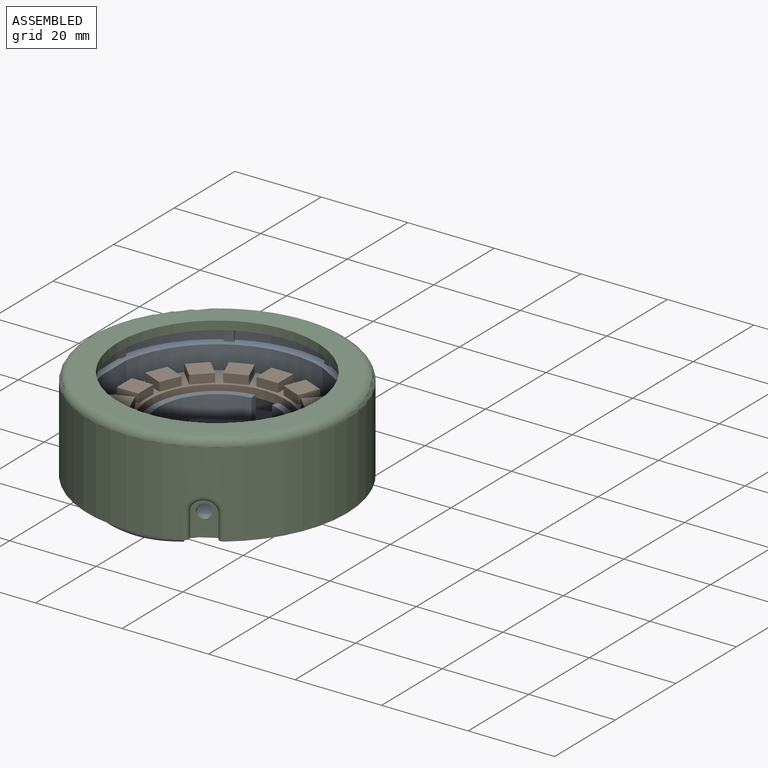
[diagram: assembled view]
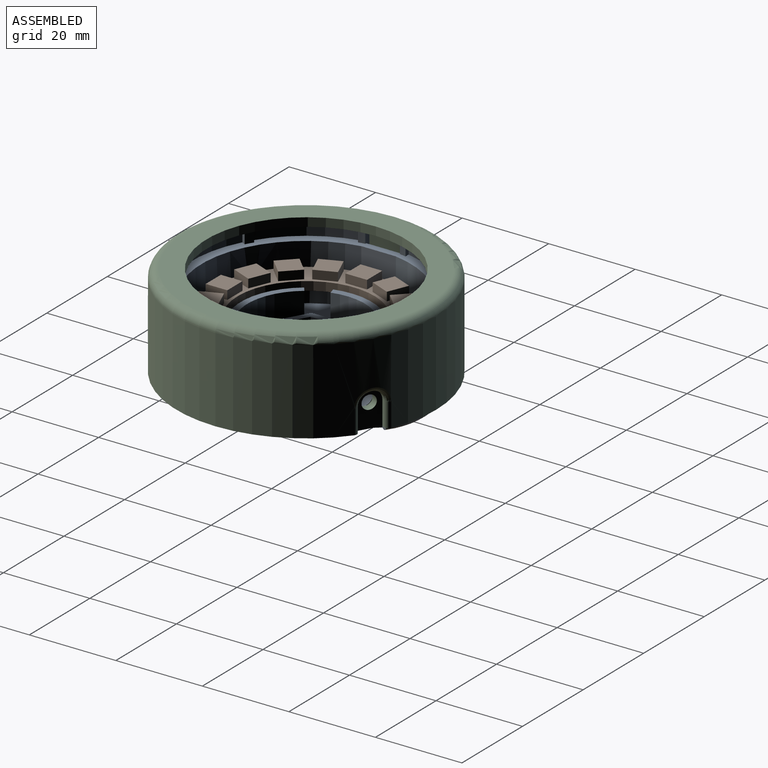
[diagram: assembled view, second angle]
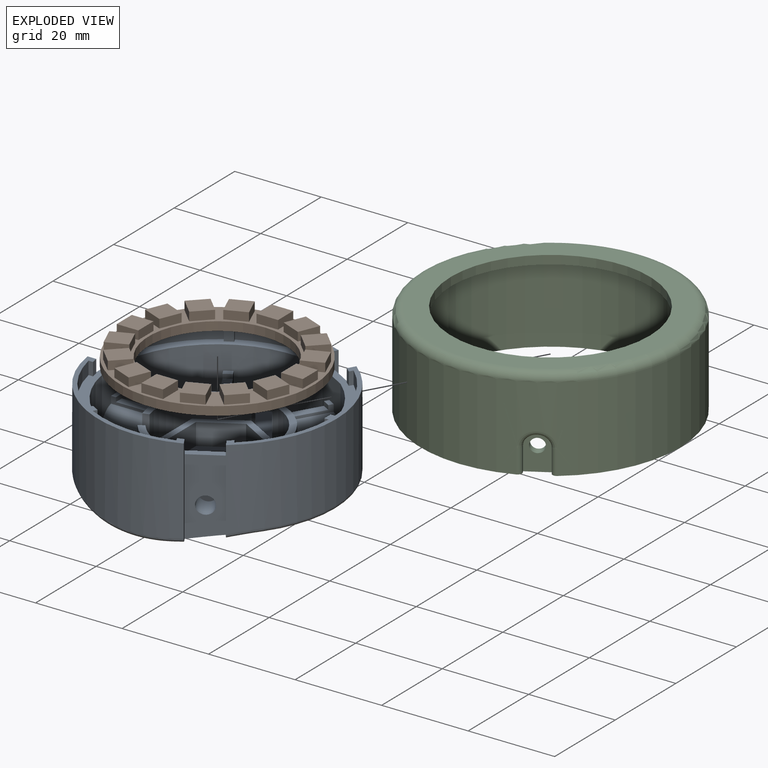
[diagram: exploded view]
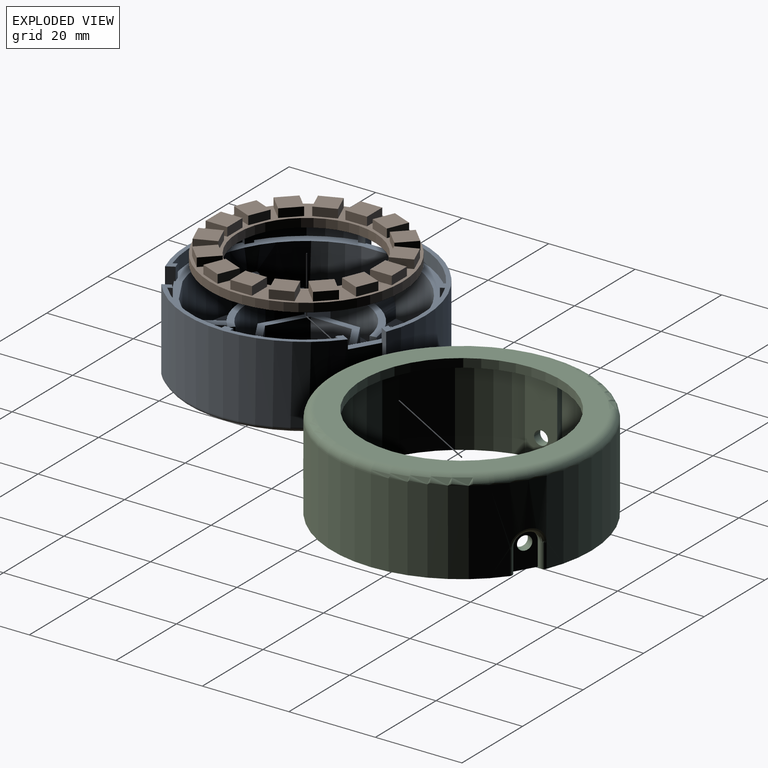
[diagram: exploded view, second angle]
ASSEMBLY  parts=3 mates=4
PART A: 145 faces, bbox 59.4x55.2x22.2 mm
  f0: plane 53x52.41mm, normal (0,0,1), area 335mm2, adj f1,f2,f3,f4,f5,f6,f8,f12
  f1: cylinder r=26.5mm len=18.72mm, axis (0,0,-1), area 63.7mm2, adj f0,f114,f132,f134
  f2: cylinder r=26.5mm len=18.7mm, axis (0,0,-1), area 63.6mm2, adj f0,f114,f130,f133
  f3: cylinder r=26.5mm len=16.96mm, axis (0,0,-1), area 63.7mm2, adj f0,f111,f125,f127
  f4: cylinder r=26.5mm len=20.57mm, axis (0,0,-1), area 63.6mm2, adj f0,f111,f123,f126
  f5: cylinder r=26.5mm len=20.59mm, axis (0,0,-1), area 63.7mm2, adj f0,f108,f118,f120
  f6: cylinder r=26.5mm len=16.93mm, axis (0,0,-1), area 63.6mm2, adj f0,f108,f116,f119
  f7: cylinder r=4mm len=9.54mm, axis (-0.5,-0.87,0), area 47.6mm2, adj f26,f45,f77,f113
  f8: plane 19.81x1.92mm, normal (-0.87,0.5,0), area 34.2mm2, adj f0,f20,f44,f104,f114,f129,f142
  f9: plane 48.05x44.64mm, normal (0,0,1), area 701.4mm2, adj f26,f28,f30,f34,f39,f45,f49,f50
  f10: plane 2x1.47mm, normal (0,0,1), area 2.9mm2, adj f61,f62,f79,f112
  f11: cylinder r=4mm len=9.54mm, axis (-0.5,0.87,0), area 47.6mm2, adj f28,f39,f74,f110
  f12: plane 20.93x1.82mm, normal (0.87,0.5,0), area 36.3mm2, adj f0,f19,f21,f38,f111,f122,f136
  f13: plane 17.67x13.42mm, normal (0,0,1), area 141.2mm2, adj f26,f43,f61,f112
  f14: plane 2.46x2.26mm, normal (0,0,1), area 2.9mm2, adj f67,f68,f85,f109
  f15: cylinder r=4mm len=9.28mm, axis (1,0,0), area 47.6mm2, adj f30,f34,f71,f107
  f16: plane 19.07x2.09mm, normal (0,-1,0), area 33.2mm2, adj f0,f22,f32,f103,f108,f115,f139
  f17: plane 19.69x10.63mm, normal (0,0,1), area 141.2mm2, adj f28,f37,f67,f109
  f18: plane 2.46x2.26mm, normal (0,0,1), area 2.9mm2, adj f64,f65,f82,f106
  f19: cylinder r=57mm len=30.66mm, axis (1,0,0), area 114mm2, adj f12,f38,f105,f136
  f20: cylinder r=27.5mm len=43.13mm, axis (0,0,-1), area 897.1mm2, adj f8,f40,f114,f142,f143,f144
  f21: cylinder r=27.5mm len=37.35mm, axis (0,0,-1), area 932mm2, adj f12,f23,f111,f136,f137,f138
  f22: plane 16x8mm, normal (-1,0,0), area 115.4mm2, adj f0,f16,f23,f35,f103
  f23: plane 19.07x2.09mm, normal (0,1,0), area 33.2mm2, adj f0,f21,f22,f103,f111,f128,f138
  f24: cylinder r=6.5mm len=13mm, axis (0,0,1), area 81.7mm2, adj f101,f103
  f25: cylinder r=4mm len=9.54mm, axis (-0.5,-0.87,0), area 47.6mm2, adj f26,f43,f76,f113
  f26: cylinder r=15.12mm len=20.66mm, axis (0,0,-1), area 140mm2, adj f7,f9,f13,f25,f43,f58,f59,f60
  f27: cylinder r=4mm len=9.54mm, axis (-0.5,0.87,0), area 47.6mm2, adj f28,f37,f73,f110
  f28: cylinder r=15.12mm len=22.91mm, axis (0,0,-1), area 140mm2, adj f9,f11,f17,f27,f37,f54,f55,f56
  f29: cylinder r=4mm len=9.28mm, axis (1,0,0), area 47.6mm2, adj f30,f33,f70,f107
  f30: cylinder r=15.12mm len=19.03mm, axis (0,0,-1), area 140mm2, adj f9,f15,f29,f31,f33,f50,f51,f52
  f31: plane 16.44x15.46mm, normal (0,0,1), area 141.2mm2, adj f30,f33,f64,f106
  f32: cylinder r=27.5mm len=37.35mm, axis (0,0,-1), area 932mm2, adj f16,f46,f108,f139,f140,f141
  f33: plane 9.28x2mm, normal (0,1,0), area 18.6mm2, adj f29,f30,f31,f106
  f34: plane 9.28x2mm, normal (0,-1,0), area 18.6mm2, adj f9,f15,f51,f109
  f35: cylinder r=2mm len=6mm, axis (-1,0,0), area 75.4mm2, adj f22,f36
  f36: plane 4x4mm, normal (-1,0,0), area 12.6mm2, adj f35
  f37: plane 8.04x4.64mm, normal (-0.87,-0.5,0), area 18.6mm2, adj f17,f27,f28,f109
  f38: plane 17.73x6.95mm, normal (0.5,-0.87,0), area 124.1mm2, adj f0,f12,f19,f40,f41,f105
  f39: plane 8.04x4.64mm, normal (0.87,0.5,0), area 18.6mm2, adj f9,f11,f55,f112
  f40: plane 19.81x1.92mm, normal (-0.87,-0.5,0), area 34.2mm2, adj f0,f20,f38,f105,f114,f135,f144
  f41: cylinder r=2mm len=7.2mm, axis (0.5,-0.87,0), area 75.4mm2, adj f38,f42
  f42: plane 4x3.46mm, normal (0.5,-0.87,0), area 12.6mm2, adj f41
  f43: plane 8.04x4.64mm, normal (0.87,-0.5,0), area 18.6mm2, adj f13,f25,f26,f112
  f44: plane 17.73x6.95mm, normal (0.5,0.87,0), area 124.1mm2, adj f0,f8,f46,f47,f102,f104
  f45: plane 8.04x4.64mm, normal (-0.87,0.5,0), area 18.6mm2, adj f7,f9,f59,f106
  f46: plane 20.93x1.81mm, normal (0.87,-0.5,0), area 36.3mm2, adj f0,f32,f44,f102,f108,f121,f141
  f47: cylinder r=2mm len=7.2mm, axis (0.5,0.87,0), area 75.4mm2, adj f44,f48
  f48: plane 4x3.46mm, normal (0.5,0.87,0), area 12.6mm2, adj f47
  f49: cylinder r=13.62mm len=17.14mm, axis (0,0,-1), area 176.3mm2, adj f9,f50,f51,f52
  f50: plane 7.5x1.49mm, normal (0.99,0.11,0), area 11.2mm2, adj f9,f30,f49,f52
  f51: plane 7.5x1.45mm, normal (0.26,-0.96,0), area 11.3mm2, adj f9,f30,f34,f49,f52
  f52: plane 19.03x13.58mm, normal (0,0,1), area 37.2mm2, adj f30,f49,f50,f51
  f53: cylinder r=13.62mm len=20.64mm, axis (0,0,-1), area 176.3mm2, adj f9,f54,f55,f56
  f54: plane 7.5x1.21mm, normal (-0.59,0.8,0), area 11.3mm2, adj f9,f28,f53,f56
  f55: plane 7.5x1.07mm, normal (0.7,0.71,0), area 11.2mm2, adj f9,f28,f39,f53,f56
  f56: plane 22.91x7.02mm, normal (0,0,1), area 37.2mm2, adj f28,f53,f54,f55
  f57: cylinder r=13.62mm len=18.61mm, axis (0,0,-1), area 176.3mm2, adj f9,f58,f59,f60
  f58: plane 7.5x1.38mm, normal (-0.4,-0.92,0), area 11.2mm2, adj f9,f26,f57,f60
  f59: plane 7.5x1.45mm, normal (-0.97,0.25,0), area 11.2mm2, adj f9,f26,f45,f57,f60
  f60: plane 20.66x11.68mm, normal (0,0,1), area 37.2mm2, adj f26,f57,f58,f59
  f61: plane 9.09x7.5mm, normal (0,1,0), area 60.5mm2, adj f10,f13,f26,f63,f79,f112
  f62: plane 9.09x7.5mm, normal (0,-1,0), area 60.5mm2, adj f9,f10,f26,f63,f79,f112
  f63: plane 7.66x2mm, normal (0,0,1), area 15.3mm2, adj f26,f61,f62,f79
  f64: plane 7.87x7.5mm, normal (-0.87,-0.5,0), area 60.5mm2, adj f18,f30,f31,f66,f82,f106
  f65: plane 7.87x7.5mm, normal (0.87,0.5,0), area 60.5mm2, adj f9,f18,f30,f66,f82,f106
  f66: plane 7.61x5.55mm, normal (0,0,1), area 15.3mm2, adj f30,f64,f65,f82
  f67: plane 7.87x7.5mm, normal (0.87,-0.5,0), area 60.5mm2, adj f14,f17,f28,f69,f85,f109
  f68: plane 7.87x7.5mm, normal (-0.87,0.5,0), area 60.5mm2, adj f9,f14,f28,f69,f85,f109
  f69: plane 7.61x5.55mm, normal (0,0,1), area 15.3mm2, adj f28,f67,f68,f85
  f70: plane 8.78x1.63mm, normal (0,1,0), area 6.6mm2, adj f29,f30,f72,f83,f84,f107
  f71: plane 8.78x1.63mm, normal (0,-1,0), area 6.6mm2, adj f15,f30,f72,f83,f84,f107
  f72: plane 7.66x2mm, normal (0,0,1), area 15.3mm2, adj f30,f70,f71,f83
  f73: plane 7.6x4.39mm, normal (-0.87,-0.5,0), area 6.6mm2, adj f27,f28,f75,f86,f87,f110
  f74: plane 7.6x4.39mm, normal (0.87,0.5,0), area 6.6mm2, adj f11,f28,f75,f86,f87,f110
  f75: plane 7.61x5.55mm, normal (0,0,1), area 15.3mm2, adj f28,f73,f74,f86
  f76: plane 7.6x4.39mm, normal (0.87,-0.5,0), area 6.6mm2, adj f25,f26,f78,f80,f81,f113
  f77: plane 7.6x4.39mm, normal (-0.87,0.5,0), area 6.6mm2, adj f7,f26,f78,f80,f81,f113
  f78: plane 7.61x5.55mm, normal (0,0,1), area 15.3mm2, adj f26,f76,f77,f80
  f79: cylinder r=22.75mm len=2mm, axis (0,0,-1), area 2mm2, adj f10,f61,f62,f63
  f80: cylinder r=22.75mm len=1.73mm, axis (0,0,-1), area 2mm2, adj f76,f77,f78,f81
  f81: plane 2.3x1.99mm, normal (0,0,1), area 2.2mm2, adj f76,f77,f80,f113
  f82: cylinder r=22.75mm len=1.73mm, axis (0,0,-1), area 2mm2, adj f18,f64,f65,f66
  f83: cylinder r=22.75mm len=2mm, axis (0,0,-1), area 2mm2, adj f70,f71,f72,f84
  f84: plane 2x1.14mm, normal (0,0,1), area 2.2mm2, adj f70,f71,f83,f107
  f85: cylinder r=22.75mm len=1.73mm, axis (0,0,-1), area 2mm2, adj f14,f67,f68,f69
  f86: cylinder r=22.75mm len=1.73mm, axis (0,0,-1), area 2mm2, adj f73,f74,f75,f87
  f87: plane 2.3x1.99mm, normal (0,0,1), area 2.2mm2, adj f73,f74,f86,f110
  f88: plane 8.25x5mm, normal (0.5,-0.87,0), area 47.6mm2, adj f89,f99,f100,f101
  f89: plane 8.25x5mm, normal (-0.5,-0.87,0), area 47.6mm2, adj f88,f90,f100,f101
  f90: plane 9.53x5mm, normal (-1,0,0), area 47.6mm2, adj f89,f91,f100,f101
  f91: plane 8.25x5mm, normal (-0.5,0.87,0), area 47.6mm2, adj f90,f92,f100,f101
  f92: plane 8.25x5mm, normal (0.5,0.87,0), area 47.6mm2, adj f91,f99,f100,f101
  f93: plane 9.75x5.63mm, normal (-0.5,0.87,0), area 45mm2, adj f9,f94,f98,f100
  f94: plane 11.26x4mm, normal (-1,0,0), area 45mm2, adj f9,f93,f95,f100
  f95: plane 9.75x5.63mm, normal (-0.5,-0.87,0), area 45mm2, adj f9,f94,f96,f100
  f96: plane 9.75x5.63mm, normal (0.5,-0.87,0), area 45mm2, adj f9,f95,f97,f100
  f97: plane 11.26x4mm, normal (1,0,0), area 45mm2, adj f9,f96,f98,f100
  f98: plane 9.75x5.63mm, normal (0.5,0.87,0), area 45mm2, adj f9,f93,f97,f100
  f99: plane 9.53x5mm, normal (1,0,0), area 47.6mm2, adj f88,f92,f100,f101
  f100: plane 22.52x19.5mm, normal (0,0,1), area 93.5mm2, adj f88,f89,f90,f91,f92,f93,f94,f95
  f101: plane 19.05x16.5mm, normal (0,0,1), area 103mm2, adj f24,f88,f89,f90,f91,f92,f99
  f102: cylinder r=57mm len=30.66mm, axis (1,0,0), area 114mm2, adj f44,f46,f104,f141
  f103: plane 52.7x31.14mm, normal (0,0,-1), area 1409.7mm2, adj f16,f22,f23,f24,f104,f105,f138,f139
  f104: cylinder r=20mm len=42.89mm, axis (1,0,0), area 203.8mm2, adj f8,f44,f102,f103,f140,f142
  f105: cylinder r=20mm len=42.89mm, axis (1,0,0), area 203.8mm2, adj f19,f38,f40,f103,f137,f144
  f106: cylinder r=24.2mm len=32.34mm, axis (0,0,-1), area 539.4mm2, adj f0,f9,f18,f31,f33,f45,f64,f65
  f107: plane 11x8mm, normal (1,0,0), area 59.8mm2, adj f0,f15,f29,f70,f71,f84,f106,f109
  f108: plane 37.35x23.5mm, normal (0,0,1), area 53.5mm2, adj f5,f6,f16,f32,f46,f115,f116,f117
  f109: cylinder r=24.2mm len=32.34mm, axis (0,0,-1), area 539.4mm2, adj f0,f9,f14,f17,f34,f37,f67,f68
  f110: plane 11x6.93mm, normal (-0.5,0.87,0), area 59.8mm2, adj f0,f11,f27,f73,f74,f87,f109,f112
  f111: plane 37.35x23.5mm, normal (0,0,1), area 53.5mm2, adj f3,f4,f12,f21,f23,f122,f123,f124
  f112: cylinder r=24.2mm len=37.34mm, axis (0,0,-1), area 539.4mm2, adj f0,f9,f10,f13,f39,f43,f61,f62
  f113: plane 11x6.93mm, normal (-0.5,-0.87,0), area 59.8mm2, adj f0,f7,f25,f76,f77,f81,f106,f112
  f114: plane 43.13x11.44mm, normal (0,0,1), area 53.5mm2, adj f1,f2,f8,f20,f40,f129,f130,f131
  f115: cylinder r=25.5mm len=3mm, axis (0,0,-1), area 4.6mm2, adj f0,f16,f108,f116
  f116: plane 3x1.02mm, normal (0,1,0), area 3.1mm2, adj f0,f6,f108,f115
  f117: cylinder r=25.5mm len=3mm, axis (0,0,-1), area 6mm2, adj f0,f108,f118,f119
  f118: plane 3x0.87mm, normal (0.87,0.5,0), area 3mm2, adj f0,f5,f108,f117
  f119: plane 3x0.87mm, normal (-0.87,-0.5,0), area 3mm2, adj f0,f6,f108,f117
  f120: plane 3x0.89mm, normal (-0.87,0.5,0), area 3.1mm2, adj f0,f5,f108,f121
  f121: cylinder r=25.5mm len=3mm, axis (0,0,-1), area 4.5mm2, adj f0,f46,f108,f120
  f122: cylinder r=25.5mm len=3mm, axis (0,0,-1), area 4.6mm2, adj f0,f12,f111,f123
  f123: plane 3x0.89mm, normal (-0.87,-0.5,0), area 3.1mm2, adj f0,f4,f111,f122
  f124: cylinder r=25.5mm len=3mm, axis (0,0,-1), area 6mm2, adj f0,f111,f125,f126
  f125: plane 3x0.87mm, normal (-0.87,0.5,0), area 3mm2, adj f0,f3,f111,f124
  f126: plane 3x0.87mm, normal (0.87,-0.5,0), area 3mm2, adj f0,f4,f111,f124
  f127: plane 3x1.02mm, normal (0,-1,0), area 3.1mm2, adj f0,f3,f111,f128
  f128: cylinder r=25.5mm len=3mm, axis (0,0,-1), area 4.5mm2, adj f0,f23,f111,f127
  f129: cylinder r=25.5mm len=3mm, axis (0,0,-1), area 4.6mm2, adj f0,f8,f114,f130
  f130: plane 3x0.89mm, normal (0.87,-0.5,0), area 3.1mm2, adj f0,f2,f114,f129
  f131: cylinder r=25.5mm len=3mm, axis (0,0,-1), area 6mm2, adj f0,f114,f132,f133
  f132: plane 3x1mm, normal (0,-1,0), area 3mm2, adj f0,f1,f114,f131
  f133: plane 3x1mm, normal (0,1,0), area 3mm2, adj f0,f2,f114,f131
  f134: plane 3x0.89mm, normal (0.87,0.5,0), area 3.1mm2, adj f0,f1,f114,f135
  f135: cylinder r=25.5mm len=3mm, axis (0,0,-1), area 4.5mm2, adj f0,f40,f114,f134
  f136: bspline ~30.99x8.44mm, area 52.7mm2, adj f12,f19,f21,f137
  f137: bspline ~10.27x9.29mm, area 13.5mm2, adj f21,f105,f136,f138
  f138: torus R=26.5mm, axis (0,0,1), area 20.4mm2, adj f21,f23,f103,f137
  f139: torus R=26.5mm, axis (0,0,1), area 20.4mm2, adj f16,f32,f103,f140
  f140: bspline ~11.73x11.54mm, area 13.5mm2, adj f32,f104,f139,f141
  f141: bspline ~29.28x7.02mm, area 52.7mm2, adj f32,f46,f102,f140
  f142: bspline ~9.86x8.76mm, area 12.2mm2, adj f8,f20,f104,f143
  f143: torus R=26.5mm, axis (0,0,1), area 53.5mm2, adj f20,f103,f142,f144
  f144: bspline ~9.86x8.76mm, area 12.2mm2, adj f20,f40,f105,f143
PART B: 84 faces, bbox 44.5x44.5x4 mm
  f0: plane 44.5x44.5mm, normal (0,0,1), area 366mm2, adj f1,f2,f4,f5,f6,f7,f9,f10
  f1: cylinder r=15.85mm len=31.7mm, axis (0,0,-1), area 199.2mm2, adj f0,f3
  f2: cylinder r=22.25mm len=44.5mm, axis (0,0,-1), area 279.6mm2, adj f0,f3
  f3: plane 44.5x44.5mm, normal (0,0,-1), area 766mm2, adj f1,f2
  f4: plane 5x2mm, normal (0,1,0), area 10mm2, adj f0,f5,f7,f8
  f5: plane 5x2mm, normal (-1,0,0), area 10mm2, adj f0,f4,f6,f8
  f6: plane 5x2mm, normal (0,-1,0), area 10mm2, adj f0,f5,f7,f8
  f7: plane 5x2mm, normal (1,0,0), area 10mm2, adj f0,f4,f6,f8
  f8: plane 5x5mm, normal (0,0,1), area 25mm2, adj f4,f5,f6,f7
  f9: plane 4.62x2mm, normal (-0.38,0.92,0), area 10mm2, adj f0,f10,f12,f13
  f10: plane 4.62x2mm, normal (-0.92,-0.38,0), area 10mm2, adj f0,f9,f11,f13
  f11: plane 4.62x2mm, normal (0.38,-0.92,0), area 10mm2, adj f0,f10,f12,f13
  f12: plane 4.62x2mm, normal (0.92,0.38,0), area 10mm2, adj f0,f9,f11,f13
  f13: plane 6.53x6.53mm, normal (0,0,1), area 25mm2, adj f9,f10,f11,f12
  f14: plane 3.54x3.54mm, normal (-0.71,0.71,0), area 10mm2, adj f0,f15,f17,f18
  f15: plane 3.54x3.54mm, normal (-0.71,-0.71,0), area 10mm2, adj f0,f14,f16,f18
  f16: plane 3.54x3.54mm, normal (0.71,-0.71,0), area 10mm2, adj f0,f15,f17,f18
  f17: plane 3.54x3.54mm, normal (0.71,0.71,0), area 10mm2, adj f0,f14,f16,f18
  f18: plane 7.07x7.07mm, normal (0,0,1), area 25mm2, adj f14,f15,f16,f17
  f19: plane 4.62x2mm, normal (-0.92,0.38,0), area 10mm2, adj f0,f20,f22,f23
  f20: plane 4.62x2mm, normal (-0.38,-0.92,0), area 10mm2, adj f0,f19,f21,f23
  f21: plane 4.62x2mm, normal (0.92,-0.38,0), area 10mm2, adj f0,f20,f22,f23
  f22: plane 4.62x2mm, normal (0.38,0.92,0), area 10mm2, adj f0,f19,f21,f23
  f23: plane 6.53x6.53mm, normal (0,0,1), area 25mm2, adj f19,f20,f21,f22
  f24: plane 5x2mm, normal (-1,0,0), area 10mm2, adj f0,f25,f27,f28
  f25: plane 5x2mm, normal (0,-1,0), area 10mm2, adj f0,f24,f26,f28
  f26: plane 5x2mm, normal (1,0,0), area 10mm2, adj f0,f25,f27,f28
  f27: plane 5x2mm, normal (0,1,0), area 10mm2, adj f0,f24,f26,f28
  f28: plane 5x5mm, normal (0,0,1), area 25mm2, adj f24,f25,f26,f27
  f29: plane 4.62x2mm, normal (-0.92,-0.38,0), area 10mm2, adj f0,f30,f32,f33
  f30: plane 4.62x2mm, normal (0.38,-0.92,0), area 10mm2, adj f0,f29,f31,f33
  f31: plane 4.62x2mm, normal (0.92,0.38,0), area 10mm2, adj f0,f30,f32,f33
  f32: plane 4.62x2mm, normal (-0.38,0.92,0), area 10mm2, adj f0,f29,f31,f33
  f33: plane 6.53x6.53mm, normal (0,0,1), area 25mm2, adj f29,f30,f31,f32
  f34: plane 3.54x3.54mm, normal (-0.71,-0.71,0), area 10mm2, adj f0,f35,f37,f38
  f35: plane 3.54x3.54mm, normal (0.71,-0.71,0), area 10mm2, adj f0,f34,f36,f38
  f36: plane 3.54x3.54mm, normal (0.71,0.71,0), area 10mm2, adj f0,f35,f37,f38
  f37: plane 3.54x3.54mm, normal (-0.71,0.71,0), area 10mm2, adj f0,f34,f36,f38
  f38: plane 7.07x7.07mm, normal (0,0,1), area 25mm2, adj f34,f35,f36,f37
  f39: plane 4.62x2mm, normal (-0.38,-0.92,0), area 10mm2, adj f0,f40,f42,f43
  f40: plane 4.62x2mm, normal (0.92,-0.38,0), area 10mm2, adj f0,f39,f41,f43
  f41: plane 4.62x2mm, normal (0.38,0.92,0), area 10mm2, adj f0,f40,f42,f43
  f42: plane 4.62x2mm, normal (-0.92,0.38,0), area 10mm2, adj f0,f39,f41,f43
  f43: plane 6.53x6.53mm, normal (0,0,1), area 25mm2, adj f39,f40,f41,f42
  f44: plane 5x2mm, normal (0,-1,0), area 10mm2, adj f0,f45,f47,f48
  f45: plane 5x2mm, normal (1,0,0), area 10mm2, adj f0,f44,f46,f48
  f46: plane 5x2mm, normal (0,1,0), area 10mm2, adj f0,f45,f47,f48
  f47: plane 5x2mm, normal (-1,0,0), area 10mm2, adj f0,f44,f46,f48
  f48: plane 5x5mm, normal (0,0,1), area 25mm2, adj f44,f45,f46,f47
  f49: plane 4.62x2mm, normal (0.38,-0.92,0), area 10mm2, adj f0,f50,f52,f53
  f50: plane 4.62x2mm, normal (0.92,0.38,0), area 10mm2, adj f0,f49,f51,f53
  f51: plane 4.62x2mm, normal (-0.38,0.92,0), area 10mm2, adj f0,f50,f52,f53
  f52: plane 4.62x2mm, normal (-0.92,-0.38,0), area 10mm2, adj f0,f49,f51,f53
  f53: plane 6.53x6.53mm, normal (0,0,1), area 25mm2, adj f49,f50,f51,f52
  f54: plane 3.54x3.54mm, normal (0.71,-0.71,0), area 10mm2, adj f0,f55,f57,f58
  f55: plane 3.54x3.54mm, normal (0.71,0.71,0), area 10mm2, adj f0,f54,f56,f58
  f56: plane 3.54x3.54mm, normal (-0.71,0.71,0), area 10mm2, adj f0,f55,f57,f58
  f57: plane 3.54x3.54mm, normal (-0.71,-0.71,0), area 10mm2, adj f0,f54,f56,f58
  f58: plane 7.07x7.07mm, normal (0,0,1), area 25mm2, adj f54,f55,f56,f57
  f59: plane 4.62x2mm, normal (0.92,-0.38,0), area 10mm2, adj f0,f60,f62,f63
  f60: plane 4.62x2mm, normal (0.38,0.92,0), area 10mm2, adj f0,f59,f61,f63
  f61: plane 4.62x2mm, normal (-0.92,0.38,0), area 10mm2, adj f0,f60,f62,f63
  f62: plane 4.62x2mm, normal (-0.38,-0.92,0), area 10mm2, adj f0,f59,f61,f63
  f63: plane 6.53x6.53mm, normal (0,0,1), area 25mm2, adj f59,f60,f61,f62
  f64: plane 5x2mm, normal (1,0,0), area 10mm2, adj f0,f65,f67,f68
  f65: plane 5x2mm, normal (0,1,0), area 10mm2, adj f0,f64,f66,f68
  f66: plane 5x2mm, normal (-1,0,0), area 10mm2, adj f0,f65,f67,f68
  f67: plane 5x2mm, normal (0,-1,0), area 10mm2, adj f0,f64,f66,f68
  f68: plane 5x5mm, normal (0,0,1), area 25mm2, adj f64,f65,f66,f67
  f69: plane 4.62x2mm, normal (0.92,0.38,0), area 10mm2, adj f0,f70,f72,f73
  f70: plane 4.62x2mm, normal (-0.38,0.92,0), area 10mm2, adj f0,f69,f71,f73
  f71: plane 4.62x2mm, normal (-0.92,-0.38,0), area 10mm2, adj f0,f70,f72,f73
  f72: plane 4.62x2mm, normal (0.38,-0.92,0), area 10mm2, adj f0,f69,f71,f73
  f73: plane 6.53x6.53mm, normal (0,0,1), area 25mm2, adj f69,f70,f71,f72
  f74: plane 3.54x3.54mm, normal (0.71,0.71,0), area 10mm2, adj f0,f75,f77,f78
  f75: plane 3.54x3.54mm, normal (-0.71,0.71,0), area 10mm2, adj f0,f74,f76,f78
  f76: plane 3.54x3.54mm, normal (-0.71,-0.71,0), area 10mm2, adj f0,f75,f77,f78
  f77: plane 3.54x3.54mm, normal (0.71,-0.71,0), area 10mm2, adj f0,f74,f76,f78
  f78: plane 7.07x7.07mm, normal (0,0,1), area 25mm2, adj f74,f75,f76,f77
  f79: plane 4.62x2mm, normal (0.38,0.92,0), area 10mm2, adj f0,f80,f82,f83
  f80: plane 4.62x2mm, normal (-0.92,0.38,0), area 10mm2, adj f0,f79,f81,f83
  f81: plane 4.62x2mm, normal (-0.38,-0.92,0), area 10mm2, adj f0,f80,f82,f83
  f82: plane 4.62x2mm, normal (0.92,-0.38,0), area 10mm2, adj f0,f79,f81,f83
  f83: plane 6.53x6.53mm, normal (0,0,1), area 25mm2, adj f79,f80,f81,f82
PART C: 42 faces, bbox 64.9x64.9x21.5 mm
  f0: cylinder r=30mm len=60mm, axis (0,0,-1), area 3478.5mm2, adj f1,f8,f17,f18,f19,f28,f29,f30
  f1: plane 60x59.76mm, normal (0,0,-1), area 372.3mm2, adj f0,f3,f4,f5,f9,f10,f11,f14
  f2: plane 56x55.75mm, normal (0,0,-1), area 762.5mm2, adj f3,f4,f5,f6,f9,f10,f11,f20
  f3: cylinder r=28mm len=44.31mm, axis (0,0,-1), area 996.8mm2, adj f1,f2,f21,f31
  f4: cylinder r=28mm len=38.37mm, axis (0,0,-1), area 996.8mm2, adj f1,f2,f10,f20
  f5: cylinder r=28mm len=38.37mm, axis (0,0,-1), area 996.8mm2, adj f1,f2,f9,f32
  f6: cylinder r=23mm len=46mm, axis (0,0,-1), area 289mm2, adj f2,f7
  f7: plane 56x56mm, normal (0,0,1), area 801.1mm2, adj f6,f8
  f8: torus R=28mm, axis (0,0,-1), area 577.8mm2, adj f0,f7
  f9: plane 19.5x1.55mm, normal (0,-1,0), area 30.2mm2, adj f1,f2,f5,f11
  f10: plane 19.5x1.55mm, normal (0,1,0), area 30.2mm2, adj f1,f2,f4,f11
  f11: plane 19.5x7.5mm, normal (1,0,0), area 138.2mm2, adj f1,f2,f9,f10,f12
  f12: cylinder r=1.6mm len=3.2mm, axis (1,0,0), area 20.1mm2, adj f11,f16
  f13: cylinder r=2.75mm len=5.5mm, axis (1,0,0), area 5.9mm2, adj f14,f15,f16,f18
  f14: plane 5.5x0.56mm, normal (0,-1,0), area 3.1mm2, adj f1,f13,f16,f19
  f15: plane 5.5x0.56mm, normal (0,1,0), area 3.1mm2, adj f1,f13,f16,f17
  f16: plane 8.25x5.5mm, normal (-1,0,0), area 34.1mm2, adj f1,f12,f13,f14,f15
  f17: cylinder r=1mm len=5.5mm, axis (0,0,-1), area 9.4mm2, adj f0,f1,f15,f18
  f18: bspline ~7.76x4.59mm, area 16.1mm2, adj f0,f13,f17,f19
  f19: cylinder r=1mm len=5.5mm, axis (0,0,-1), area 9.4mm2, adj f0,f1,f14,f18
  f20: plane 19.5x1.34mm, normal (-0.87,0.5,0), area 30.2mm2, adj f1,f2,f4,f22
  f21: plane 19.5x1.34mm, normal (0.87,-0.5,0), area 30.2mm2, adj f1,f2,f3,f22
  f22: plane 19.5x6.5mm, normal (-0.5,-0.87,0), area 138.2mm2, adj f1,f2,f20,f21,f23
  f23: cylinder r=1.6mm len=3.77mm, axis (-0.5,-0.87,0), area 20.1mm2, adj f22,f27
  f24: cylinder r=2.75mm len=5.16mm, axis (-0.5,-0.87,0), area 5.9mm2, adj f25,f26,f27,f29
  f25: plane 5.5x0.48mm, normal (-0.87,0.5,0), area 3.1mm2, adj f1,f24,f27,f30
  f26: plane 5.5x0.48mm, normal (0.87,-0.5,0), area 3.1mm2, adj f1,f24,f27,f28
  f27: plane 8.25x4.76mm, normal (0.5,0.87,0), area 34.1mm2, adj f1,f23,f24,f25,f26
  f28: cylinder r=1mm len=5.5mm, axis (0,0,-1), area 9.4mm2, adj f0,f1,f26,f29
  f29: bspline ~6.72x4.59mm, area 16.1mm2, adj f0,f24,f28,f30
  f30: cylinder r=1mm len=5.5mm, axis (0,0,-1), area 9.4mm2, adj f0,f1,f25,f29
  f31: plane 19.5x1.34mm, normal (0.87,0.5,0), area 30.2mm2, adj f1,f2,f3,f33
  f32: plane 19.5x1.34mm, normal (-0.87,-0.5,0), area 30.2mm2, adj f1,f2,f5,f33
  f33: plane 19.5x6.5mm, normal (-0.5,0.87,0), area 138.2mm2, adj f1,f2,f31,f32,f34
  f34: cylinder r=1.6mm len=3.77mm, axis (-0.5,0.87,0), area 20.1mm2, adj f33,f38
  f35: cylinder r=2.75mm len=5.16mm, axis (-0.5,0.87,0), area 5.9mm2, adj f36,f37,f38,f40
  f36: plane 5.5x0.48mm, normal (0.87,0.5,0), area 3.1mm2, adj f1,f35,f38,f41
  f37: plane 5.5x0.48mm, normal (-0.87,-0.5,0), area 3.1mm2, adj f1,f35,f38,f39
  f38: plane 8.25x4.76mm, normal (0.5,-0.87,0), area 34.1mm2, adj f1,f34,f35,f36,f37
  f39: cylinder r=1mm len=5.5mm, axis (0,0,-1), area 9.4mm2, adj f0,f1,f37,f40
  f40: bspline ~6.72x4.59mm, area 16.1mm2, adj f0,f35,f39,f41
  f41: cylinder r=1mm len=5.5mm, axis (0,0,-1), area 9.4mm2, adj f0,f1,f36,f40
PLACE A t=(0,0,-10)mm
PLACE B rot(axis=(0,0,1),90deg) t=(0,0,9.5)mm
PLACE C t=(0,0,21.5)mm
MATE cylindrical A.f47 <-> C.f23  axis (0.5,0.87,0) through (12.75,22.08,5.5)mm
MATE cylindrical C.f0 <-> A.f24  axis (0,0,-1) through (0,0,19.5)mm
MATE cylindrical B.f1 <-> A.f24  axis (0,0,-1) through (0,0,9.5)mm
MATE fastened B.f2 <-> A.f79  axis (0,0,-1) through (0,0,9.5)mm
